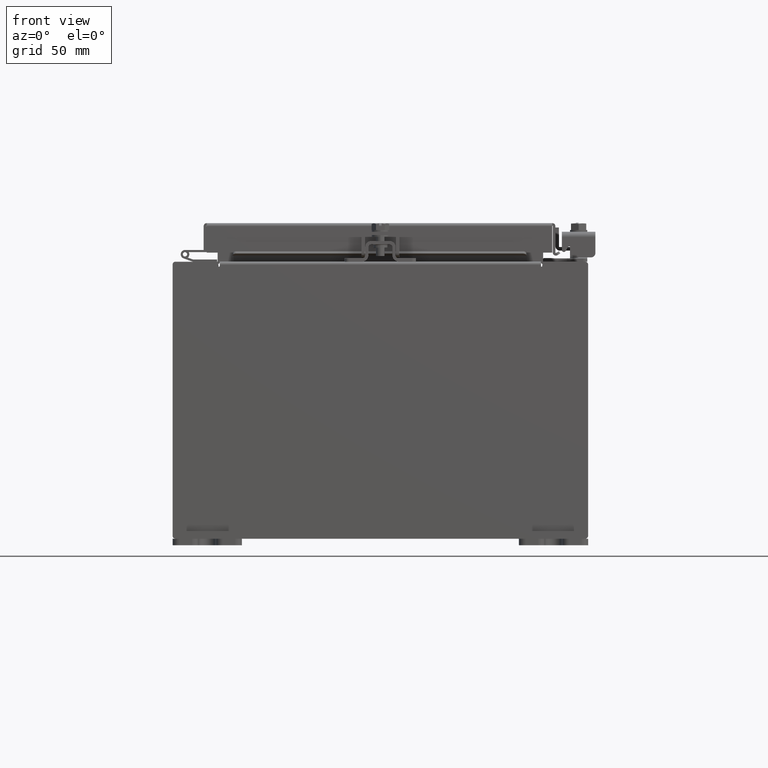
[diagram: clean part render]
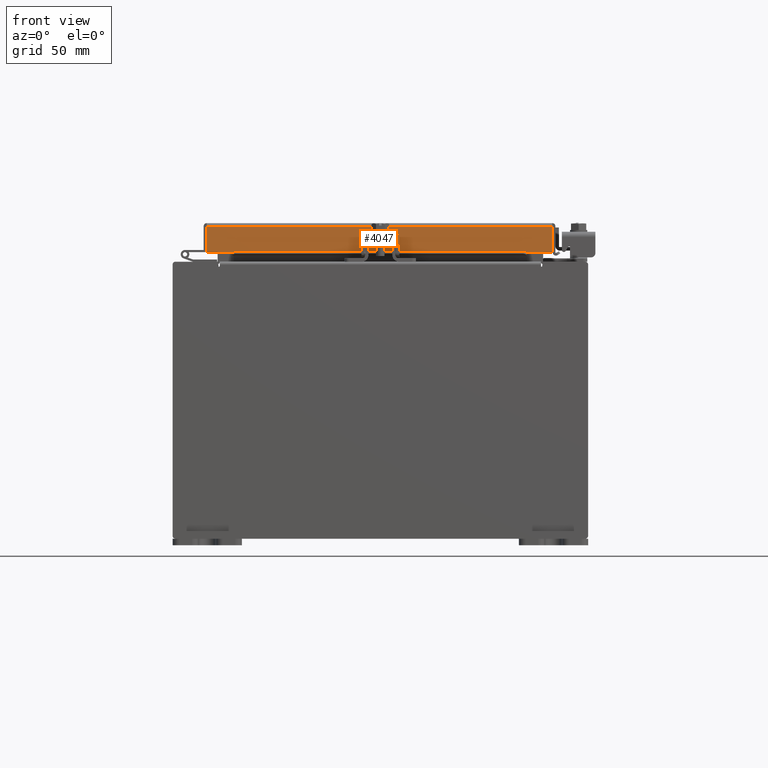
[diagram: same view with one face highlighted and labeled with its STEP entity id]
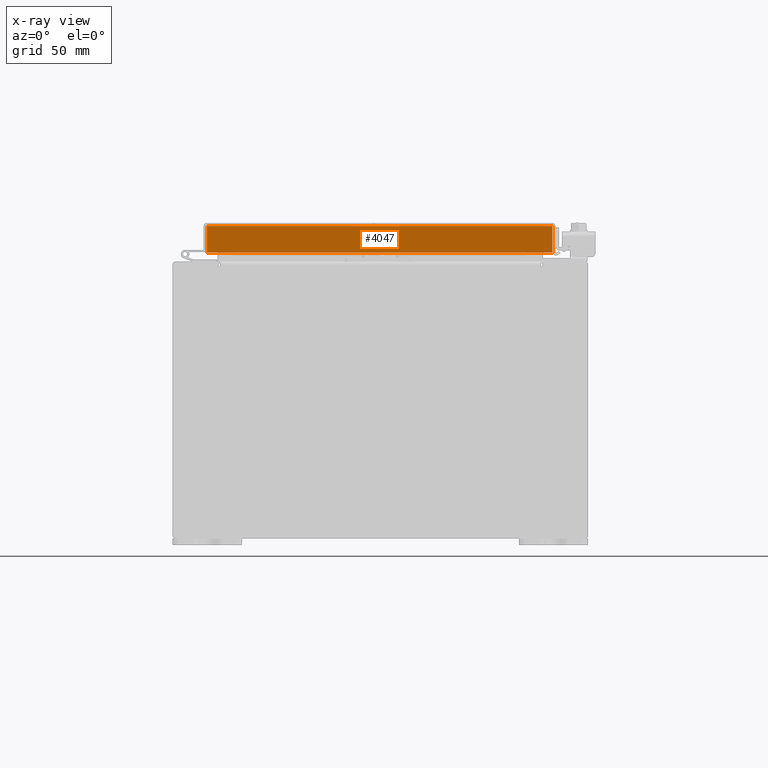
[diagram: x-ray of the same camera — body ghosted, the highlighted face saturated]
A machine part, front view. The second image highlights one B-rep face of the part: STEP entity #4047.
The next image is the same camera in x-ray: the body ghosted, the highlighted face saturated — about 0% of this face is hidden behind the body in this view.
In plain terms, the highlighted planar face has unit normal (-0, 1, -0).
Its self-contained STEP definition (entity closure, byte-faithful):
#211 = CARTESIAN_POINT ( 'NONE',  ( 4.989157864376268000, -5.094000000000001200, -0.08770000000000026400 ) ) ;
#588 = LINE ( 'NONE', #16348, #16222 ) ;
#885 = CARTESIAN_POINT ( 'NONE',  ( -4.989157864376269700, -5.094000000000001200, 1.420560956705417000E-014 ) ) ;
#1631 = CARTESIAN_POINT ( 'NONE',  ( 5.077999999999998500, -5.094000000000001200, -0.08770000000000026400 ) ) ;
#1634 = CARTESIAN_POINT ( 'NONE',  ( -4.989157864376269700, -5.094000000000003000, -0.8499999999999988700 ) ) ;
#1878 = VERTEX_POINT ( 'NONE', #8762 ) ;
#2025 = VECTOR ( 'NONE', #19191, 39.37007874015748100 ) ;
#2373 = EDGE_CURVE ( 'NONE', #1878, #14048, #13493, .T. ) ;
#2405 = ORIENTED_EDGE ( 'NONE', *, *, #7987, .F. ) ;
#3081 = EDGE_CURVE ( 'NONE', #22740, #14048, #588, .T. ) ;
#3198 = VERTEX_POINT ( 'NONE', #21734 ) ;
#3487 = DIRECTION ( 'NONE',  ( -3.412110487939144300E-031, 1.000000000000000000, -2.818880942772360100E-015 ) ) ;
#4047 = ADVANCED_FACE ( 'NONE', ( #16073 ), #10723, .F. ) ;
#4737 = CARTESIAN_POINT ( 'NONE',  ( 4.239157864376268000, -5.094000000000002100, -0.8499999999999999800 ) ) ;
#6205 = VERTEX_POINT ( 'NONE', #22771 ) ;
#7987 = EDGE_CURVE ( 'NONE', #1878, #12068, #17917, .T. ) ;
#8433 = ORIENTED_EDGE ( 'NONE', *, *, #3081, .F. ) ;
#8762 = CARTESIAN_POINT ( 'NONE',  ( -4.989157864376269700, -5.094000000000001200, -0.08770000000000026400 ) ) ;
#8864 = DIRECTION ( 'NONE',  ( -1.000000000000000000, -4.379057701015054300E-047, 1.210448599004449200E-016 ) ) ;
#9444 = AXIS2_PLACEMENT_3D ( 'NONE', #12220, #3487, #21642 ) ;
#9599 = EDGE_CURVE ( 'NONE', #12068, #6205, #9962, .T. ) ;
#9962 = LINE ( 'NONE', #13299, #10877 ) ;
#10723 = PLANE ( 'NONE',  #9444 ) ;
#10877 = VECTOR ( 'NONE', #14287, 39.37007874015748100 ) ;
#11948 = EDGE_LOOP ( 'NONE', ( #2405, #17359, #8433, #15171, #17463, #22949 ) ) ;
#12068 = VERTEX_POINT ( 'NONE', #211 ) ;
#12220 = CARTESIAN_POINT ( 'NONE',  ( 0.0000000000000000000, -5.094000000000001200, 1.420560956705417000E-014 ) ) ;
#13299 = CARTESIAN_POINT ( 'NONE',  ( 4.989157864376268000, -5.094000000000001200, -0.07470000000000015500 ) ) ;
#13493 = LINE ( 'NONE', #885, #2025 ) ;
#13769 = EDGE_CURVE ( 'NONE', #6205, #3198, #20444, .T. ) ;
#13809 = DIRECTION ( 'NONE',  ( 1.000000000000000000, 3.412110487939144700E-031, -9.300620212429628900E-046 ) ) ;
#13814 = VECTOR ( 'NONE', #13809, 39.37007874015748100 ) ;
#14048 = VERTEX_POINT ( 'NONE', #1634 ) ;
#14287 = DIRECTION ( 'NONE',  ( -0.0000000000000000000, -2.818880942772360100E-015, -1.000000000000000000 ) ) ;
#14288 = DIRECTION ( 'NONE',  ( -1.000000000000000000, -4.379057701015054300E-047, 1.210448599004449200E-016 ) ) ;
#14413 = EDGE_CURVE ( 'NONE', #3198, #22740, #17888, .T. ) ;
#14634 = CARTESIAN_POINT ( 'NONE',  ( 5.077999999999998500, -5.094000000000003000, -0.8499999999999999800 ) ) ;
#14729 = DIRECTION ( 'NONE',  ( -1.000000000000000000, 0.0000000000000000000, 0.0000000000000000000 ) ) ;
#15171 = ORIENTED_EDGE ( 'NONE', *, *, #14413, .F. ) ;
#15192 = CARTESIAN_POINT ( 'NONE',  ( -4.239157864376270600, -5.094000000000002100, -0.8499999999999999800 ) ) ;
#16073 = FACE_OUTER_BOUND ( 'NONE', #11948, .T. ) ;
#16222 = VECTOR ( 'NONE', #8864, 39.37007874015748100 ) ;
#16348 = CARTESIAN_POINT ( 'NONE',  ( 5.077999999999998500, -5.094000000000003000, -0.8499999999999999800 ) ) ;
#17359 = ORIENTED_EDGE ( 'NONE', *, *, #2373, .T. ) ;
#17463 = ORIENTED_EDGE ( 'NONE', *, *, #13769, .F. ) ;
#17888 = LINE ( 'NONE', #4737, #22769 ) ;
#17917 = LINE ( 'NONE', #1631, #13814 ) ;
#18184 = VECTOR ( 'NONE', #14288, 39.37007874015748100 ) ;
#19191 = DIRECTION ( 'NONE',  ( 0.0000000000000000000, -2.818880942772360100E-015, -1.000000000000000000 ) ) ;
#20444 = LINE ( 'NONE', #14634, #18184 ) ;
#21642 = DIRECTION ( 'NONE',  ( 0.0000000000000000000, 2.818880942772360100E-015, 1.000000000000000000 ) ) ;
#21734 = CARTESIAN_POINT ( 'NONE',  ( 4.239157864376268000, -5.094000000000002100, -0.8499999999999999800 ) ) ;
#22740 = VERTEX_POINT ( 'NONE', #15192 ) ;
#22769 = VECTOR ( 'NONE', #14729, 39.37007874015748100 ) ;
#22771 = CARTESIAN_POINT ( 'NONE',  ( 4.989157864376268000, -5.094000000000003000, -0.8499999999999999800 ) ) ;
#22949 = ORIENTED_EDGE ( 'NONE', *, *, #9599, .F. ) ;